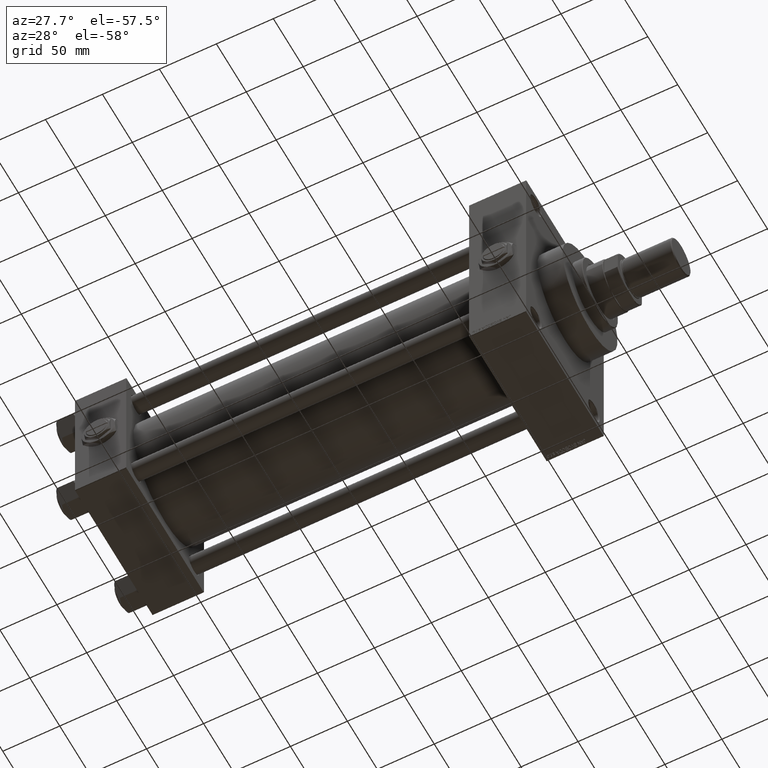
[diagram: clean part render]
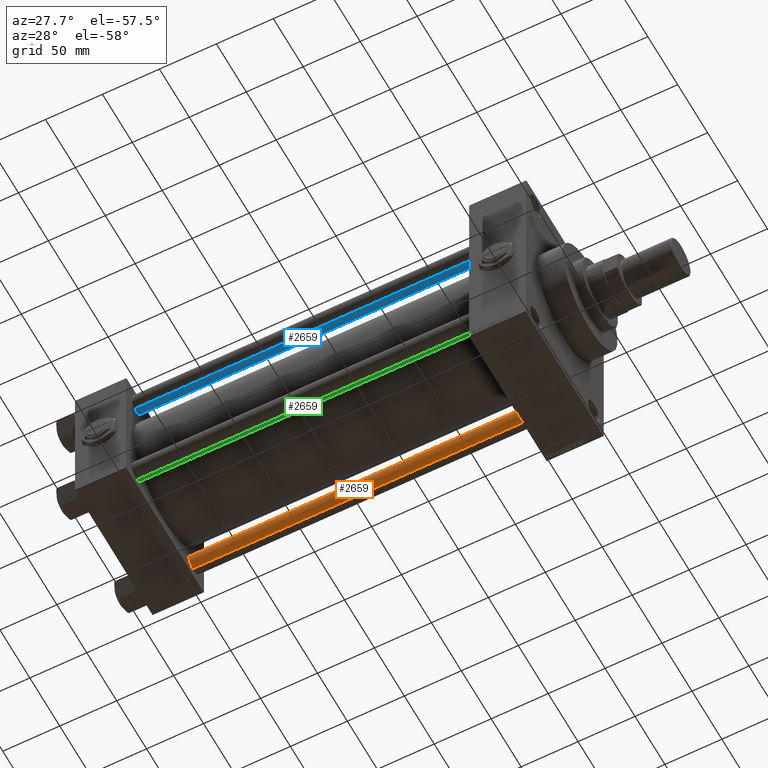
[diagram: same view with three faces highlighted in distinct colors, each labeled with its STEP entity id]
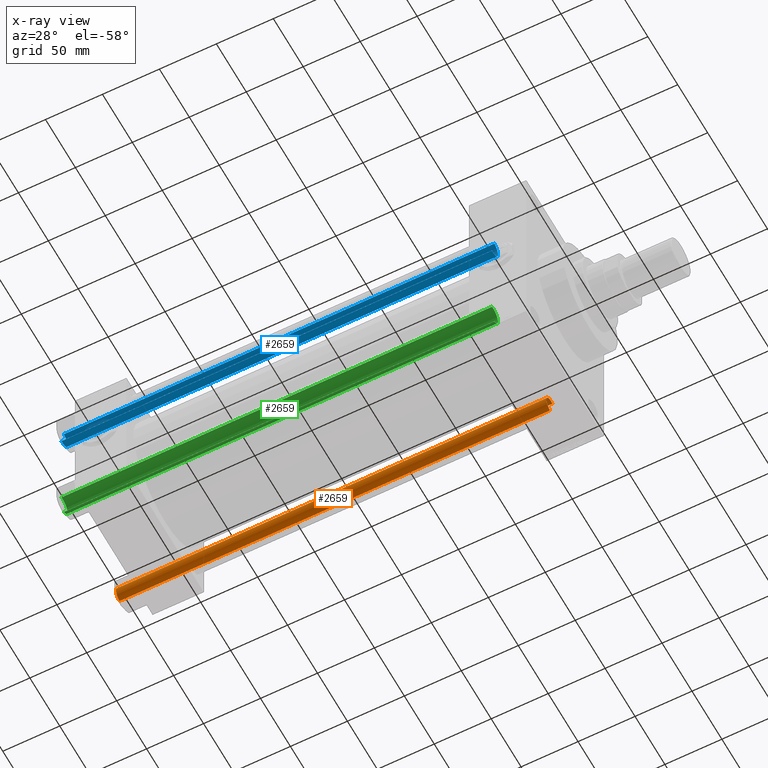
[diagram: x-ray of the same camera — body ghosted, the three highlighted faces saturated]
A machine part, auxiliary view with three faces highlighted in distinct colors.
The next image is the same camera in x-ray (body ghosted, the three faces saturated) — at least one of them is partly hidden behind the body in this view.
Their STEP definitions:

[orange] entity #2659 — the highlighted cylindrical surface (edge-blend (fillet) strip) has radius 8 mm, axis along (1, -0, 0).
#329 = CARTESIAN_POINT ( 'NONE',  ( -8.000000000000000000, 0.000000000000000000, 0.4999999999998894218 ) ) ;
#392 = LINE ( 'NONE', #38764, #2293 ) ;
#503 = CARTESIAN_POINT ( 'NONE',  ( 0.000000000000000000, 0.000000000000000000, 378.4999999999999432 ) ) ;
#2293 = VECTOR ( 'NONE', #34454, 1000.000000000000000 ) ;
#2659 = ADVANCED_FACE ( 'NONE', ( #19566 ), #35057, .T. ) ;
#3479 = CIRCLE ( 'NONE', #35926, 8.000000000000000000 ) ;
#4309 = DIRECTION ( 'NONE',  ( -0.000000000000000000, -0.000000000000000000, -1.000000000000000000 ) ) ;
#8127 = CARTESIAN_POINT ( 'NONE',  ( 0.000000000000000000, 0.000000000000000000, 379.0000000000000000 ) ) ;
#9950 = VERTEX_POINT ( 'NONE', #21434 ) ;
#10330 = DIRECTION ( 'NONE',  ( 1.000000000000000000, 0.000000000000000000, 0.000000000000000000 ) ) ;
#11378 = CARTESIAN_POINT ( 'NONE',  ( 8.000000000000000000, 9.797174393178825657E-16, 378.4999999999999432 ) ) ;
#12988 = LINE ( 'NONE', #19842, #29313 ) ;
#14146 = CARTESIAN_POINT ( 'NONE',  ( 0.000000000000000000, 0.000000000000000000, 0.4999999999998894218 ) ) ;
#14227 = EDGE_LOOP ( 'NONE', ( #36925, #21273, #32537, #17908 ) ) ;
#14838 = DIRECTION ( 'NONE',  ( 1.000000000000000000, 0.000000000000000000, 0.000000000000000000 ) ) ;
#16194 = EDGE_CURVE ( 'NONE', #42755, #9950, #392, .T. ) ;
#17908 = ORIENTED_EDGE ( 'NONE', *, *, #33864, .T. ) ;
#19566 = FACE_OUTER_BOUND ( 'NONE', #14227, .T. ) ;
#19842 = CARTESIAN_POINT ( 'NONE',  ( -8.000000000000000000, 0.000000000000000000, 379.0000000000000000 ) ) ;
#21273 = ORIENTED_EDGE ( 'NONE', *, *, #23101, .T. ) ;
#21434 = CARTESIAN_POINT ( 'NONE',  ( 8.000000000000000000, 9.797174393178825657E-16, 0.4999999999998894218 ) ) ;
#23101 = EDGE_CURVE ( 'NONE', #42755, #46235, #50226, .T. ) ;
#23673 = CARTESIAN_POINT ( 'NONE',  ( -8.000000000000000000, 0.000000000000000000, 378.4999999999999432 ) ) ;
#26646 = AXIS2_PLACEMENT_3D ( 'NONE', #8127, #4309, #39864 ) ;
#26752 = EDGE_CURVE ( 'NONE', #46235, #39694, #12988, .T. ) ;
#29313 = VECTOR ( 'NONE', #35094, 1000.000000000000000 ) ;
#32537 = ORIENTED_EDGE ( 'NONE', *, *, #26752, .T. ) ;
#33864 = EDGE_CURVE ( 'NONE', #39694, #9950, #3479, .T. ) ;
#34020 = AXIS2_PLACEMENT_3D ( 'NONE', #503, #37954, #14838 ) ;
#34454 = DIRECTION ( 'NONE',  ( -0.000000000000000000, -0.000000000000000000, -1.000000000000000000 ) ) ;
#35057 = CYLINDRICAL_SURFACE ( 'NONE', #26646, 8.000000000000000000 ) ;
#35094 = DIRECTION ( 'NONE',  ( -0.000000000000000000, -0.000000000000000000, -1.000000000000000000 ) ) ;
#35926 = AXIS2_PLACEMENT_3D ( 'NONE', #14146, #49173, #10330 ) ;
#36925 = ORIENTED_EDGE ( 'NONE', *, *, #16194, .F. ) ;
#37954 = DIRECTION ( 'NONE',  ( 0.000000000000000000, 0.000000000000000000, -1.000000000000000000 ) ) ;
#38764 = CARTESIAN_POINT ( 'NONE',  ( 8.000000000000000000, 9.797174393178825657E-16, 379.0000000000000000 ) ) ;
#39694 = VERTEX_POINT ( 'NONE', #329 ) ;
#39864 = DIRECTION ( 'NONE',  ( -1.000000000000000000, 0.000000000000000000, 0.000000000000000000 ) ) ;
#42755 = VERTEX_POINT ( 'NONE', #11378 ) ;
#46235 = VERTEX_POINT ( 'NONE', #23673 ) ;
#49173 = DIRECTION ( 'NONE',  ( -0.000000000000000000, -0.000000000000000000, 1.000000000000000000 ) ) ;
#50226 = CIRCLE ( 'NONE', #34020, 8.000000000000000000 ) ;

[blue] entity #2659 — the highlighted cylindrical surface (edge-blend (fillet) strip) has radius 8 mm, axis along (1, 0, 0).
#329 = CARTESIAN_POINT ( 'NONE',  ( -8.000000000000000000, 0.000000000000000000, 0.4999999999998894218 ) ) ;
#392 = LINE ( 'NONE', #38764, #2293 ) ;
#503 = CARTESIAN_POINT ( 'NONE',  ( 0.000000000000000000, 0.000000000000000000, 378.4999999999999432 ) ) ;
#2293 = VECTOR ( 'NONE', #34454, 1000.000000000000000 ) ;
#2659 = ADVANCED_FACE ( 'NONE', ( #19566 ), #35057, .T. ) ;
#3479 = CIRCLE ( 'NONE', #35926, 8.000000000000000000 ) ;
#4309 = DIRECTION ( 'NONE',  ( -0.000000000000000000, -0.000000000000000000, -1.000000000000000000 ) ) ;
#8127 = CARTESIAN_POINT ( 'NONE',  ( 0.000000000000000000, 0.000000000000000000, 379.0000000000000000 ) ) ;
#9950 = VERTEX_POINT ( 'NONE', #21434 ) ;
#10330 = DIRECTION ( 'NONE',  ( 1.000000000000000000, 0.000000000000000000, 0.000000000000000000 ) ) ;
#11378 = CARTESIAN_POINT ( 'NONE',  ( 8.000000000000000000, 9.797174393178825657E-16, 378.4999999999999432 ) ) ;
#12988 = LINE ( 'NONE', #19842, #29313 ) ;
#14146 = CARTESIAN_POINT ( 'NONE',  ( 0.000000000000000000, 0.000000000000000000, 0.4999999999998894218 ) ) ;
#14227 = EDGE_LOOP ( 'NONE', ( #36925, #21273, #32537, #17908 ) ) ;
#14838 = DIRECTION ( 'NONE',  ( 1.000000000000000000, 0.000000000000000000, 0.000000000000000000 ) ) ;
#16194 = EDGE_CURVE ( 'NONE', #42755, #9950, #392, .T. ) ;
#17908 = ORIENTED_EDGE ( 'NONE', *, *, #33864, .T. ) ;
#19566 = FACE_OUTER_BOUND ( 'NONE', #14227, .T. ) ;
#19842 = CARTESIAN_POINT ( 'NONE',  ( -8.000000000000000000, 0.000000000000000000, 379.0000000000000000 ) ) ;
#21273 = ORIENTED_EDGE ( 'NONE', *, *, #23101, .T. ) ;
#21434 = CARTESIAN_POINT ( 'NONE',  ( 8.000000000000000000, 9.797174393178825657E-16, 0.4999999999998894218 ) ) ;
#23101 = EDGE_CURVE ( 'NONE', #42755, #46235, #50226, .T. ) ;
#23673 = CARTESIAN_POINT ( 'NONE',  ( -8.000000000000000000, 0.000000000000000000, 378.4999999999999432 ) ) ;
#26646 = AXIS2_PLACEMENT_3D ( 'NONE', #8127, #4309, #39864 ) ;
#26752 = EDGE_CURVE ( 'NONE', #46235, #39694, #12988, .T. ) ;
#29313 = VECTOR ( 'NONE', #35094, 1000.000000000000000 ) ;
#32537 = ORIENTED_EDGE ( 'NONE', *, *, #26752, .T. ) ;
#33864 = EDGE_CURVE ( 'NONE', #39694, #9950, #3479, .T. ) ;
#34020 = AXIS2_PLACEMENT_3D ( 'NONE', #503, #37954, #14838 ) ;
#34454 = DIRECTION ( 'NONE',  ( -0.000000000000000000, -0.000000000000000000, -1.000000000000000000 ) ) ;
#35057 = CYLINDRICAL_SURFACE ( 'NONE', #26646, 8.000000000000000000 ) ;
#35094 = DIRECTION ( 'NONE',  ( -0.000000000000000000, -0.000000000000000000, -1.000000000000000000 ) ) ;
#35926 = AXIS2_PLACEMENT_3D ( 'NONE', #14146, #49173, #10330 ) ;
#36925 = ORIENTED_EDGE ( 'NONE', *, *, #16194, .F. ) ;
#37954 = DIRECTION ( 'NONE',  ( 0.000000000000000000, 0.000000000000000000, -1.000000000000000000 ) ) ;
#38764 = CARTESIAN_POINT ( 'NONE',  ( 8.000000000000000000, 9.797174393178825657E-16, 379.0000000000000000 ) ) ;
#39694 = VERTEX_POINT ( 'NONE', #329 ) ;
#39864 = DIRECTION ( 'NONE',  ( -1.000000000000000000, 0.000000000000000000, 0.000000000000000000 ) ) ;
#42755 = VERTEX_POINT ( 'NONE', #11378 ) ;
#46235 = VERTEX_POINT ( 'NONE', #23673 ) ;
#49173 = DIRECTION ( 'NONE',  ( -0.000000000000000000, -0.000000000000000000, 1.000000000000000000 ) ) ;
#50226 = CIRCLE ( 'NONE', #34020, 8.000000000000000000 ) ;

[green] entity #2659 — the highlighted cylindrical surface (edge-blend (fillet) strip) has radius 8 mm, axis along (-1, 0, 0).
#329 = CARTESIAN_POINT ( 'NONE',  ( -8.000000000000000000, 0.000000000000000000, 0.4999999999998894218 ) ) ;
#392 = LINE ( 'NONE', #38764, #2293 ) ;
#503 = CARTESIAN_POINT ( 'NONE',  ( 0.000000000000000000, 0.000000000000000000, 378.4999999999999432 ) ) ;
#2293 = VECTOR ( 'NONE', #34454, 1000.000000000000000 ) ;
#2659 = ADVANCED_FACE ( 'NONE', ( #19566 ), #35057, .T. ) ;
#3479 = CIRCLE ( 'NONE', #35926, 8.000000000000000000 ) ;
#4309 = DIRECTION ( 'NONE',  ( -0.000000000000000000, -0.000000000000000000, -1.000000000000000000 ) ) ;
#8127 = CARTESIAN_POINT ( 'NONE',  ( 0.000000000000000000, 0.000000000000000000, 379.0000000000000000 ) ) ;
#9950 = VERTEX_POINT ( 'NONE', #21434 ) ;
#10330 = DIRECTION ( 'NONE',  ( 1.000000000000000000, 0.000000000000000000, 0.000000000000000000 ) ) ;
#11378 = CARTESIAN_POINT ( 'NONE',  ( 8.000000000000000000, 9.797174393178825657E-16, 378.4999999999999432 ) ) ;
#12988 = LINE ( 'NONE', #19842, #29313 ) ;
#14146 = CARTESIAN_POINT ( 'NONE',  ( 0.000000000000000000, 0.000000000000000000, 0.4999999999998894218 ) ) ;
#14227 = EDGE_LOOP ( 'NONE', ( #36925, #21273, #32537, #17908 ) ) ;
#14838 = DIRECTION ( 'NONE',  ( 1.000000000000000000, 0.000000000000000000, 0.000000000000000000 ) ) ;
#16194 = EDGE_CURVE ( 'NONE', #42755, #9950, #392, .T. ) ;
#17908 = ORIENTED_EDGE ( 'NONE', *, *, #33864, .T. ) ;
#19566 = FACE_OUTER_BOUND ( 'NONE', #14227, .T. ) ;
#19842 = CARTESIAN_POINT ( 'NONE',  ( -8.000000000000000000, 0.000000000000000000, 379.0000000000000000 ) ) ;
#21273 = ORIENTED_EDGE ( 'NONE', *, *, #23101, .T. ) ;
#21434 = CARTESIAN_POINT ( 'NONE',  ( 8.000000000000000000, 9.797174393178825657E-16, 0.4999999999998894218 ) ) ;
#23101 = EDGE_CURVE ( 'NONE', #42755, #46235, #50226, .T. ) ;
#23673 = CARTESIAN_POINT ( 'NONE',  ( -8.000000000000000000, 0.000000000000000000, 378.4999999999999432 ) ) ;
#26646 = AXIS2_PLACEMENT_3D ( 'NONE', #8127, #4309, #39864 ) ;
#26752 = EDGE_CURVE ( 'NONE', #46235, #39694, #12988, .T. ) ;
#29313 = VECTOR ( 'NONE', #35094, 1000.000000000000000 ) ;
#32537 = ORIENTED_EDGE ( 'NONE', *, *, #26752, .T. ) ;
#33864 = EDGE_CURVE ( 'NONE', #39694, #9950, #3479, .T. ) ;
#34020 = AXIS2_PLACEMENT_3D ( 'NONE', #503, #37954, #14838 ) ;
#34454 = DIRECTION ( 'NONE',  ( -0.000000000000000000, -0.000000000000000000, -1.000000000000000000 ) ) ;
#35057 = CYLINDRICAL_SURFACE ( 'NONE', #26646, 8.000000000000000000 ) ;
#35094 = DIRECTION ( 'NONE',  ( -0.000000000000000000, -0.000000000000000000, -1.000000000000000000 ) ) ;
#35926 = AXIS2_PLACEMENT_3D ( 'NONE', #14146, #49173, #10330 ) ;
#36925 = ORIENTED_EDGE ( 'NONE', *, *, #16194, .F. ) ;
#37954 = DIRECTION ( 'NONE',  ( 0.000000000000000000, 0.000000000000000000, -1.000000000000000000 ) ) ;
#38764 = CARTESIAN_POINT ( 'NONE',  ( 8.000000000000000000, 9.797174393178825657E-16, 379.0000000000000000 ) ) ;
#39694 = VERTEX_POINT ( 'NONE', #329 ) ;
#39864 = DIRECTION ( 'NONE',  ( -1.000000000000000000, 0.000000000000000000, 0.000000000000000000 ) ) ;
#42755 = VERTEX_POINT ( 'NONE', #11378 ) ;
#46235 = VERTEX_POINT ( 'NONE', #23673 ) ;
#49173 = DIRECTION ( 'NONE',  ( -0.000000000000000000, -0.000000000000000000, 1.000000000000000000 ) ) ;
#50226 = CIRCLE ( 'NONE', #34020, 8.000000000000000000 ) ;